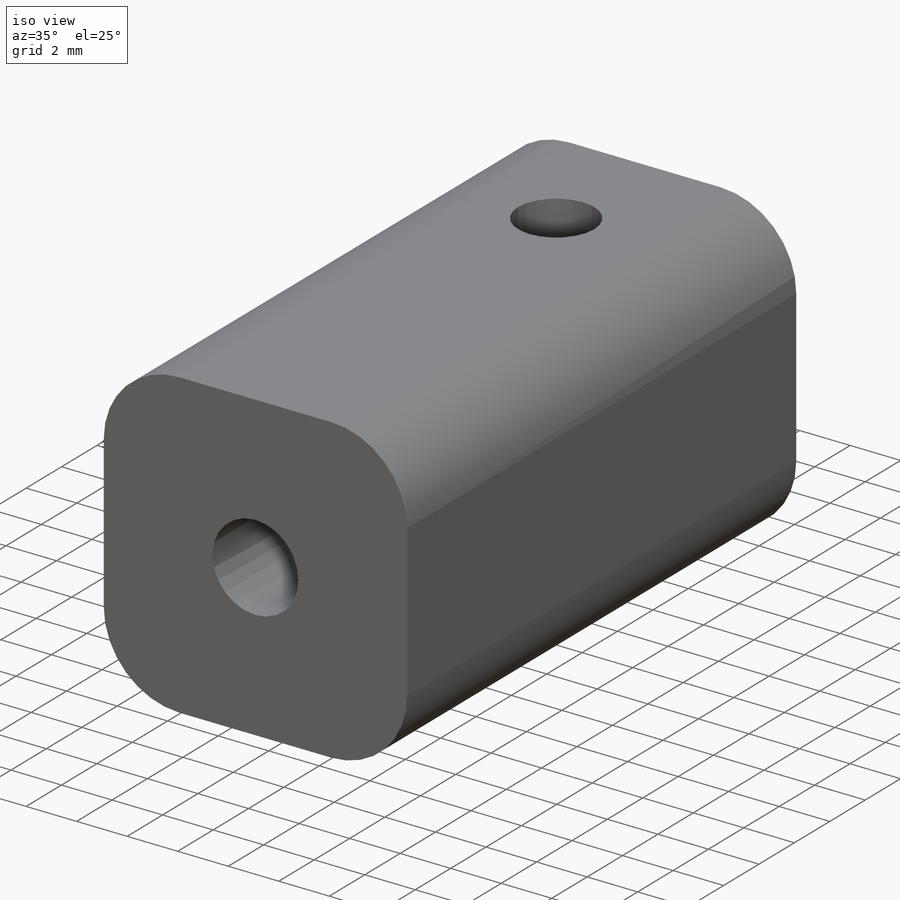
[diagram: iso view]
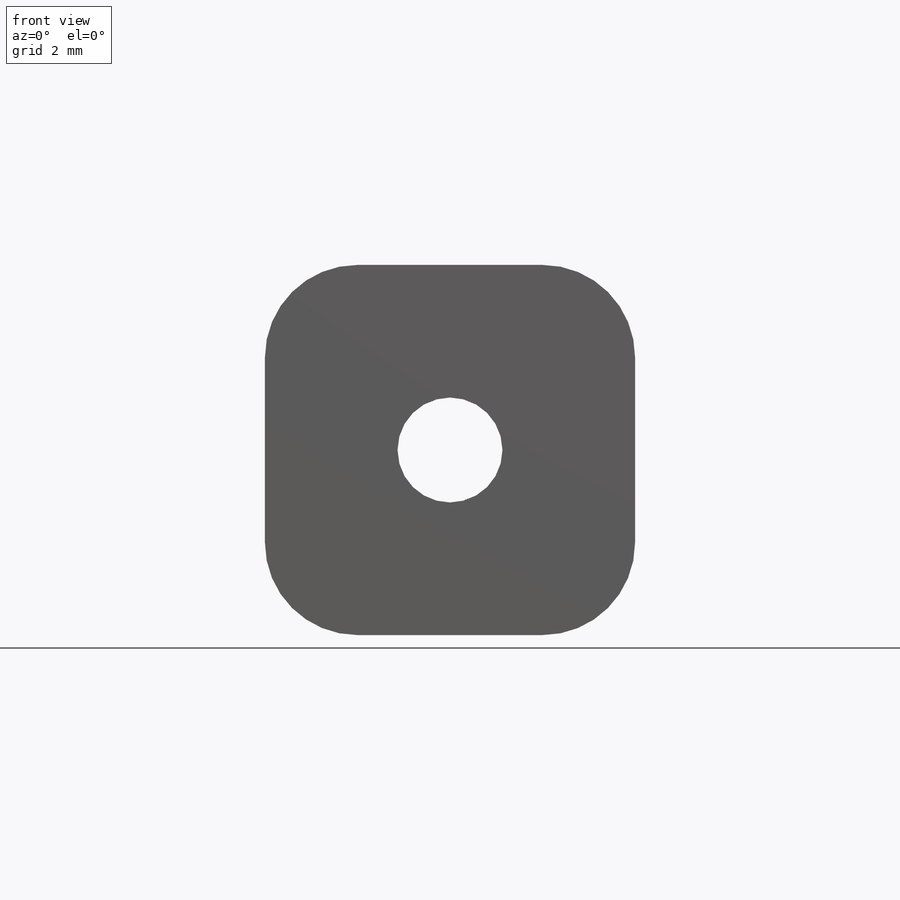
[diagram: front view]
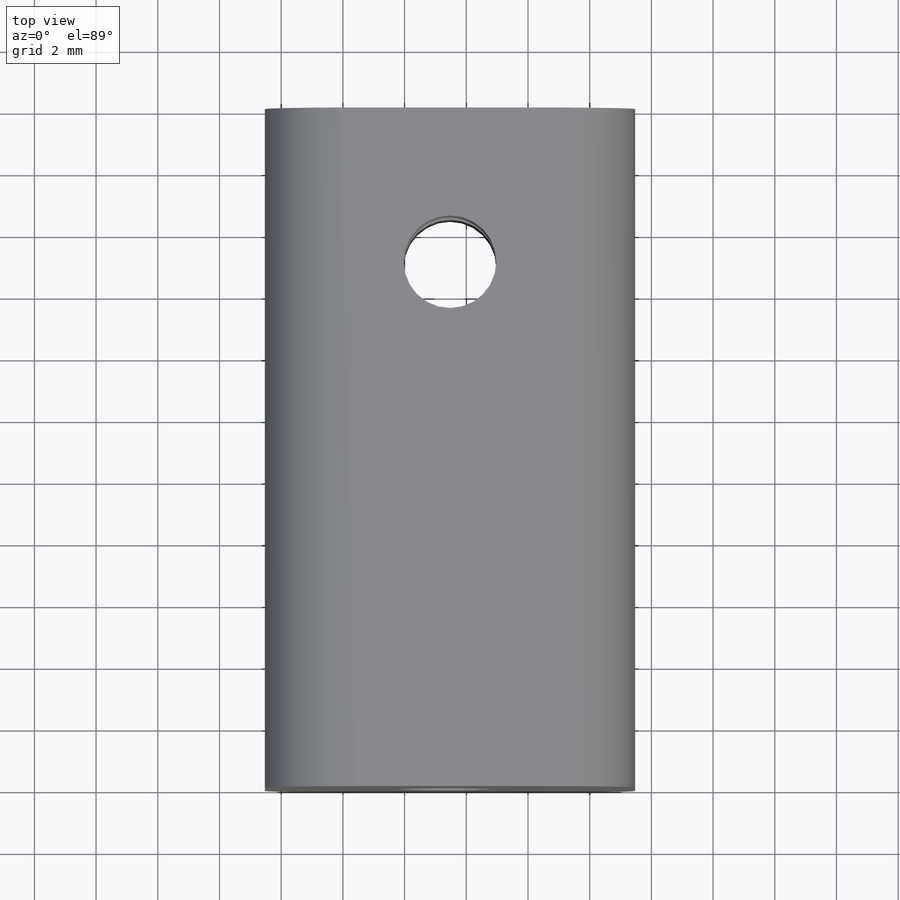
[diagram: top view]
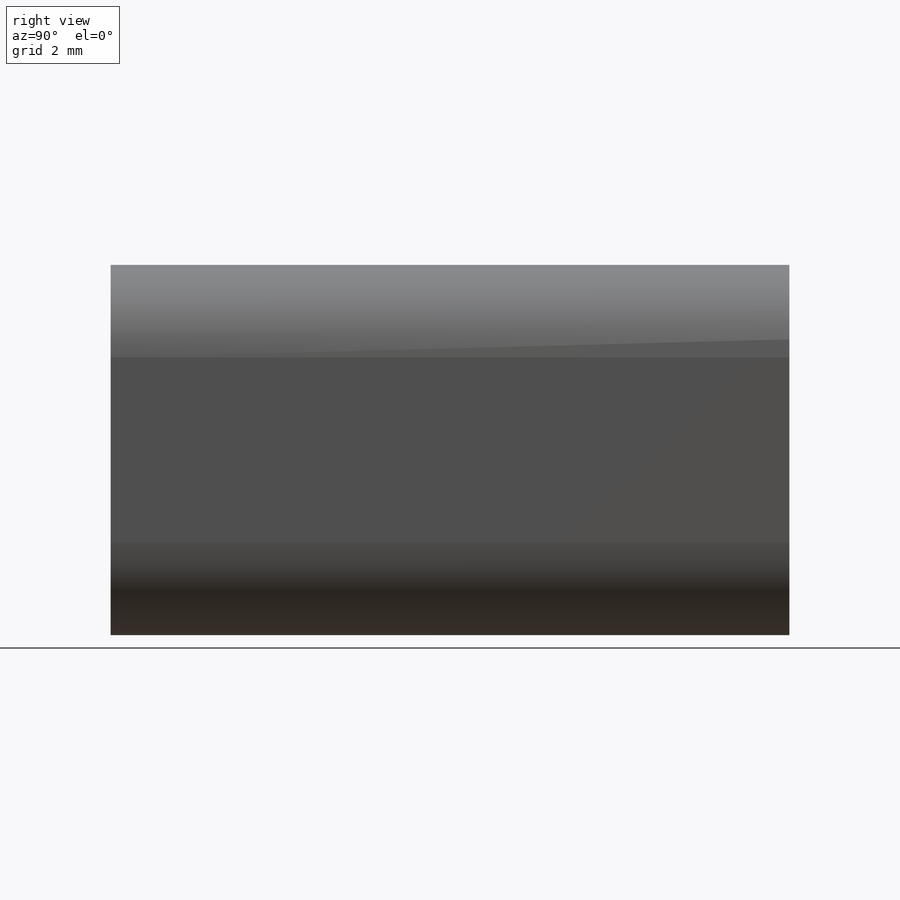
[diagram: right view]
SOLIDWORKS PART (.sldprt)
format: sldprt  version: not decoded by parser v0  size: 188,928 bytes
history: native  units: mm
features: fillet x4, plane x3, sketch x2, material x1, extrude x1, cut_extrude x1 (+10 scaffold rows collapsed)
feature tree (22):
  scaffold x10  (default folders/planes/origin — collapsed)
  material  "Material <não especificado>"
  plane  "Plano frontal"
  plane  "Plano superior"
  plane  "Plano direito"
  sketch  "Esboço1"  dims[D3=3.4mm D1=12.0mm D2=12.0mm]
  extrude  "Ressalto-extrusão1"  Depth=22mm
  sketch  "Esboço2"  dims[D2=3.0mm D1=5.0mm]
  cut_extrude  "Corte-extrusão1"  Depth=7mm
  fillet  "Filete2"  Radius=3mm
  fillet  "Filete3"  Radius=3mm
  fillet  "Filete4"  Radius=3mm
  fillet  "Filete5"  Radius=3mm
decode coverage: 8 of 8 modeling features carry decoded parameters
note: suppression state not decoded; provenance and decode notes live in map.json
